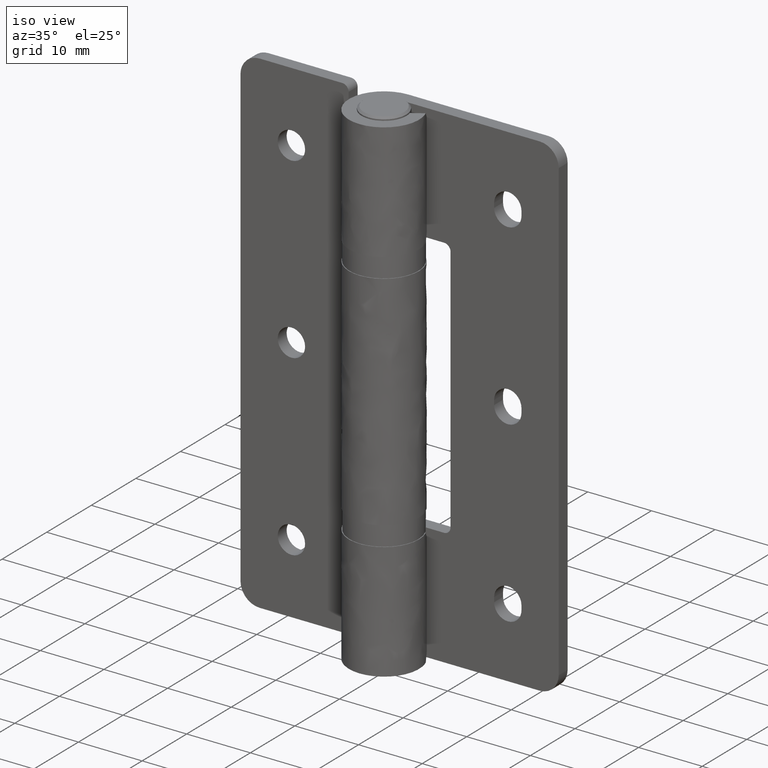
[diagram: clean part render]
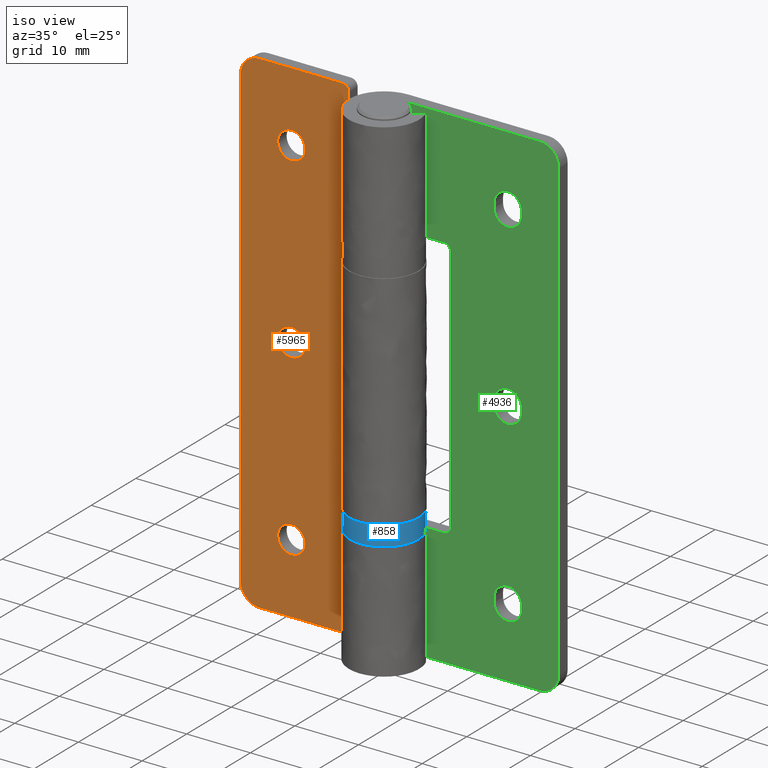
[diagram: same view with three faces highlighted in distinct colors, each labeled with its STEP entity id]
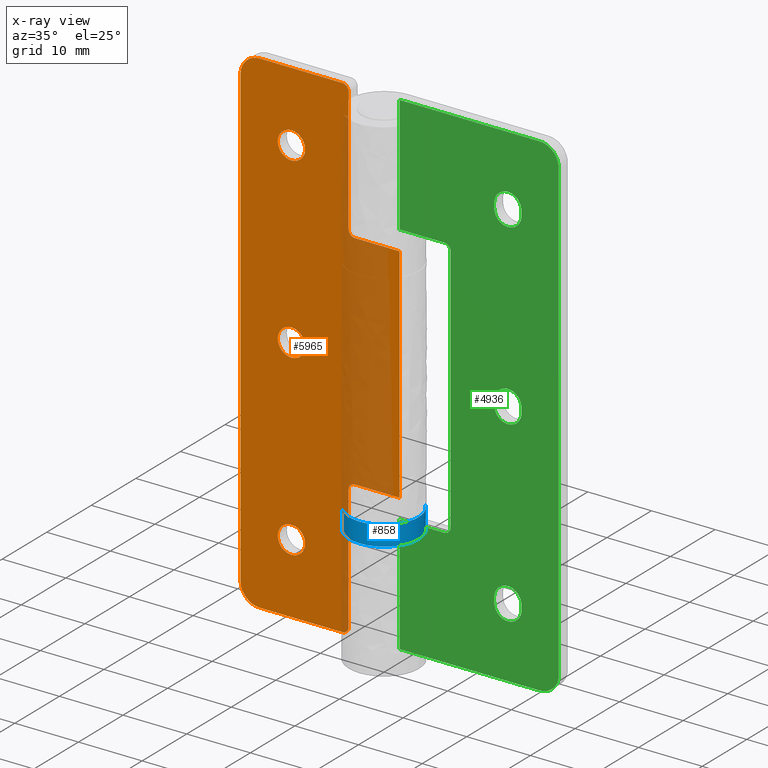
[diagram: x-ray of the same camera — body ghosted, the three highlighted faces saturated]
A machine part, iso view with three faces highlighted in distinct colors.
The next image is the same camera in x-ray (body ghosted, the three faces saturated) — at least one of them is partly hidden behind the body in this view.
Their STEP definitions:

[orange] entity #5965 — the highlighted face is a freeform B-spline surface patch.
#4957=CARTESIAN_POINT('',(-17.0,3.500000000000280,36.850000000000001));
#4958=VERTEX_POINT('',#4957);
#4959=CARTESIAN_POINT('',(-15.547481327661879,3.499999999994492,37.414853854094837));
#4960=VERTEX_POINT('',#4959);
#4961=CARTESIAN_POINT('',(-17.0,3.500000000000280,36.850000000000001));
#4962=CARTESIAN_POINT('',(-16.750784863622091,3.499999999999286,36.849813920717430));
#4963=CARTESIAN_POINT('',(-16.219342285086739,3.499999999997181,36.943530314709882));
#4964=CARTESIAN_POINT('',(-15.755514182796709,3.499999999995314,37.223788268338730));
#4965=CARTESIAN_POINT('',(-15.547481327661879,3.499999999994492,37.414853854094837));
#4966=B_SPLINE_CURVE_WITH_KNOTS('',3,(#4961,#4962,#4963,#4964,#4965),.UNSPECIFIED.,.F.,.U.,(4,1,4),(0.000000028309747,0.747583364427401,1.594830082076133),.UNSPECIFIED.);
#4967=EDGE_CURVE('',#4958,#4960,#4966,.T.);
#5012=CARTESIAN_POINT('',(-18.452518672338119,3.499999999994491,40.585146145905171));
#5013=VERTEX_POINT('',#5012);
#5019=CARTESIAN_POINT('',(-19.149999999999700,3.500000000000280,38.999998877000081));
#5020=VERTEX_POINT('',#5019);
#5021=CARTESIAN_POINT('',(-18.452518672338119,3.499999999994491,40.585146145905171));
#5022=CARTESIAN_POINT('',(-18.630609647930591,3.499999999995078,40.422187523544608));
#5023=CARTESIAN_POINT('',(-18.873011044657979,3.499999999996232,40.109778108582432));
#5024=CARTESIAN_POINT('',(-19.099346326530551,3.499999999998247,39.556966630090777));
#5025=CARTESIAN_POINT('',(-19.150072571371041,3.499999999999528,39.204241123080152));
#5026=CARTESIAN_POINT('',(-19.149999999999700,3.500000000000280,38.999998877000081));
#5027=B_SPLINE_CURVE_WITH_KNOTS('',3,(#5021,#5022,#5023,#5024,#5025,#5026),.UNSPECIFIED.,.F.,.U.,(4,1,1,4),(0.000000017056358,0.724128326418334,1.169744671054195,1.782468455133528),.UNSPECIFIED.);
#5028=EDGE_CURVE('',#5013,#5020,#5027,.T.);
#5030=CARTESIAN_POINT('',(-19.149999999999700,3.500000000000280,38.999998877000081));
#5031=CARTESIAN_POINT('',(-19.150101188763241,3.500000000000273,38.788910656635558));
#5032=CARTESIAN_POINT('',(-19.097744219350940,3.500000000000303,38.437183475204172));
#5033=CARTESIAN_POINT('',(-18.881336557648890,3.500000000000265,37.914618303467329));
#5034=CARTESIAN_POINT('',(-18.531883444500998,3.500000000000275,37.443247242324283));
#5035=CARTESIAN_POINT('',(-18.055390660098400,3.500000000000328,37.098905211314893));
#5036=CARTESIAN_POINT('',(-17.527647375223520,3.500000000000165,36.895449709180880));
#5037=CARTESIAN_POINT('',(-17.193491843255071,3.500000000000411,36.849930084764161));
#5038=CARTESIAN_POINT('',(-17.0,3.500000000000280,36.850000000000001));
#5039=B_SPLINE_CURVE_WITH_KNOTS('',3,(#5030,#5031,#5032,#5033,#5034,#5035,#5036,#5037,#5038),.UNSPECIFIED.,.F.,.U.,(4,1,1,1,1,1,4),(0.000000059267231,0.633238630304317,1.055413846520483,1.688648139767658,2.374656824311486,2.796834123014028,3.377296217363182),.UNSPECIFIED.);
#5040=EDGE_CURVE('',#5020,#4958,#5039,.T.);
#5063=CARTESIAN_POINT('',(-14.850000000000300,3.500000000000280,39.000001122999947));
#5064=VERTEX_POINT('',#5063);
#5065=CARTESIAN_POINT('',(-15.547481327661879,3.499999999994492,37.414853854094837));
#5066=CARTESIAN_POINT('',(-15.341892700432661,3.499999999995179,37.602820165097299));
#5067=CARTESIAN_POINT('',(-15.106737295369880,3.499999999996351,37.922963463069003));
#5068=CARTESIAN_POINT('',(-14.895339175971580,3.499999999998381,38.480178280560892));
#5069=CARTESIAN_POINT('',(-14.849920878185010,3.499999999999528,38.795753959126209));
#5070=CARTESIAN_POINT('',(-14.850000000000300,3.500000000000280,39.000001122999947));
#5071=B_SPLINE_CURVE_WITH_KNOTS('',3,(#5065,#5066,#5067,#5068,#5069,#5070),.UNSPECIFIED.,.F.,.U.,(4,1,1,4),(0.000000017056786,0.835532478769053,1.169744671054232,1.782468455133558),.UNSPECIFIED.);
#5072=EDGE_CURVE('',#4960,#5064,#5071,.T.);
#5074=CARTESIAN_POINT('',(-17.0,3.500000000000280,41.149999999999999));
#5075=VERTEX_POINT('',#5074);
#5076=CARTESIAN_POINT('',(-14.850000000000300,3.500000000000280,39.000001122999947));
#5077=CARTESIAN_POINT('',(-14.849687436548001,3.500000000000281,39.281494285383481));
#5078=CARTESIAN_POINT('',(-14.934121356455400,3.500000000000281,39.703396874957029));
#5079=CARTESIAN_POINT('',(-15.200837674254190,3.500000000000282,40.202172955929022));
#5080=CARTESIAN_POINT('',(-15.525932512125170,3.500000000000280,40.598469103040642));
#5081=CARTESIAN_POINT('',(-15.944586677896369,3.500000000000278,40.901102735165857));
#5082=CARTESIAN_POINT('',(-16.472352793423070,3.500000000000285,41.104552500907417));
#5083=CARTESIAN_POINT('',(-16.806511621607768,3.500000000000286,41.150065119617523));
#5084=CARTESIAN_POINT('',(-17.0,3.500000000000280,41.149999999999999));
#5085=B_SPLINE_CURVE_WITH_KNOTS('',3,(#5076,#5077,#5078,#5079,#5080,#5081,#5082,#5083,#5084),.UNSPECIFIED.,.F.,.U.,(4,1,1,1,1,1,4),(0.000000059257455,0.844324192768387,1.266503582378407,1.688648139762583,2.374656824308351,2.796834123012236,3.377296217363242),.UNSPECIFIED.);
#5086=EDGE_CURVE('',#5064,#5075,#5085,.T.);
#5088=CARTESIAN_POINT('',(-17.0,3.500000000000280,41.149999999999999));
#5089=CARTESIAN_POINT('',(-17.282453102359131,3.499999999999156,41.150290773421922));
#5090=CARTESIAN_POINT('',(-17.813779056273908,3.499999999997035,41.043629709133107));
#5091=CARTESIAN_POINT('',(-18.268902067638411,3.499999999995227,40.753642846280762));
#5092=CARTESIAN_POINT('',(-18.452518672338119,3.499999999994491,40.585146145905171));
#5093=B_SPLINE_CURVE_WITH_KNOTS('',3,(#5088,#5089,#5090,#5091,#5092),.UNSPECIFIED.,.F.,.U.,(4,1,4),(0.000000028309740,0.847246745948761,1.594830082076129),.UNSPECIFIED.);
#5094=EDGE_CURVE('',#5075,#5013,#5093,.T.);
#5153=CARTESIAN_POINT('',(-17.0,3.500000000000280,8.850000000000000));
#5154=VERTEX_POINT('',#5153);
#5155=CARTESIAN_POINT('',(-15.547481327661879,3.499999999994492,9.414853854094837));
#5156=VERTEX_POINT('',#5155);
#5157=CARTESIAN_POINT('',(-17.0,3.500000000000280,8.850000000000000));
#5158=CARTESIAN_POINT('',(-16.717546807176159,3.499999999999162,8.849687119548351));
#5159=CARTESIAN_POINT('',(-16.186213116188441,3.499999999997025,8.956378661657208));
#5160=CARTESIAN_POINT('',(-15.731107258409271,3.499999999995231,9.246366275043306));
#5161=CARTESIAN_POINT('',(-15.547481327661879,3.499999999994492,9.414853854094837));
#5162=B_SPLINE_CURVE_WITH_KNOTS('',3,(#5157,#5158,#5159,#5160,#5161),.UNSPECIFIED.,.F.,.U.,(4,1,4),(0.000000028309969,0.847246745948747,1.594830082076143),.UNSPECIFIED.);
#5163=EDGE_CURVE('',#5154,#5156,#5162,.T.);
#5208=CARTESIAN_POINT('',(-18.452518672338119,3.499999999994492,12.585146145905171));
#5209=VERTEX_POINT('',#5208);
#5215=CARTESIAN_POINT('',(-19.149999999999711,3.500000000000281,10.999998877000079));
#5216=VERTEX_POINT('',#5215);
#5217=CARTESIAN_POINT('',(-18.452518672338119,3.499999999994492,12.585146145905171));
#5218=CARTESIAN_POINT('',(-18.658100568578920,3.499999999995176,12.397179829813570));
#5219=CARTESIAN_POINT('',(-18.915680333152380,3.499999999996465,12.046545176718629));
#5220=CARTESIAN_POINT('',(-19.113002073786362,3.499999999998509,11.482714502773529));
#5221=CARTESIAN_POINT('',(-19.150038369575690,3.499999999999674,11.167105396444370));
#5222=CARTESIAN_POINT('',(-19.149999999999711,3.500000000000281,10.999998877000079));
#5223=B_SPLINE_CURVE_WITH_KNOTS('',3,(#5217,#5218,#5219,#5220,#5221,#5222),.UNSPECIFIED.,.F.,.U.,(4,1,1,4),(0.000000017056431,0.835532478768917,1.281149173840117,1.782468455133540),.UNSPECIFIED.);
#5224=EDGE_CURVE('',#5209,#5216,#5223,.T.);
#5226=CARTESIAN_POINT('',(-19.149999999999711,3.500000000000281,10.999998877000079));
#5227=CARTESIAN_POINT('',(-19.150101113542000,3.500000000000276,10.788910751429560));
#5228=CARTESIAN_POINT('',(-19.097744321428110,3.500000000000289,10.437183354541990));
#5229=CARTESIAN_POINT('',(-18.881336455206149,3.500000000000276,9.914618438697069));
#5230=CARTESIAN_POINT('',(-18.531883850229459,3.500000000000283,9.443246742958650));
#5231=CARTESIAN_POINT('',(-18.055389391644930,3.500000000000273,9.098906837843142));
#5232=CARTESIAN_POINT('',(-17.527650646409018,3.500000000000285,8.895445912307972));
#5233=CARTESIAN_POINT('',(-17.193489056433201,3.500000000000290,8.849934591403176));
#5234=CARTESIAN_POINT('',(-17.0,3.500000000000280,8.850000000000000));
#5235=B_SPLINE_CURVE_WITH_KNOTS('',3,(#5226,#5227,#5228,#5229,#5230,#5231,#5232,#5233,#5234),.UNSPECIFIED.,.F.,.U.,(4,1,1,1,1,1,4),(0.000000059263423,0.633238630300939,1.055413846517656,1.688648139765522,2.374656824310244,2.796834123013293,3.377296217363211),.UNSPECIFIED.);
#5236=EDGE_CURVE('',#5216,#5154,#5235,.T.);
#5259=CARTESIAN_POINT('',(-14.850000000000300,3.500000000000280,11.000001122999951));
#5260=VERTEX_POINT('',#5259);
#5261=CARTESIAN_POINT('',(-15.547481327661879,3.499999999994492,9.414853854094837));
#5262=CARTESIAN_POINT('',(-15.424256035091631,3.499999999994905,9.527721972640586));
#5263=CARTESIAN_POINT('',(-15.216582368603291,3.499999999995781,9.768249656113190));
#5264=CARTESIAN_POINT('',(-14.934164554715160,3.499999999997706,10.294643308150270));
#5265=CARTESIAN_POINT('',(-14.849726609252450,3.499999999999261,10.721448277535311));
#5266=CARTESIAN_POINT('',(-14.850000000000300,3.500000000000280,11.000001122999951));
#5267=B_SPLINE_CURVE_WITH_KNOTS('',3,(#5261,#5262,#5263,#5264,#5265,#5266),.UNSPECIFIED.,.F.,.U.,(4,1,1,4),(0.000000017056563,0.501319298344168,0.946935993375691,1.782468455133563),.UNSPECIFIED.);
#5268=EDGE_CURVE('',#5156,#5260,#5267,.T.);
#5270=CARTESIAN_POINT('',(-17.0,3.500000000000280,13.150000000000000));
#5271=VERTEX_POINT('',#5270);
#5272=CARTESIAN_POINT('',(-14.850000000000300,3.500000000000280,11.000001122999951));
#5273=CARTESIAN_POINT('',(-14.849690086156450,3.500000000000277,11.281491750374480));
#5274=CARTESIAN_POINT('',(-14.934116247247280,3.500000000000288,11.703401883408169));
#5275=CARTESIAN_POINT('',(-15.184175430591401,3.500000000000277,12.171001580196810));
#5276=CARTESIAN_POINT('',(-15.422884827637271,3.500000000000283,12.476898230964640));
#5277=CARTESIAN_POINT('',(-15.697890817285341,3.500000000000278,12.726153386977270));
#5278=CARTESIAN_POINT('',(-16.043589912721949,3.500000000000275,12.939170912109700));
#5279=CARTESIAN_POINT('',(-16.472345474295409,3.500000000000306,13.104565672700261));
#5280=CARTESIAN_POINT('',(-16.806507709180991,3.500000000000242,13.150070213125280));
#5281=CARTESIAN_POINT('',(-17.0,3.500000000000280,13.150000000000000));
#5282=B_SPLINE_CURVE_WITH_KNOTS('',3,(#5272,#5273,#5274,#5275,#5276,#5277,#5278,#5279,#5280,#5281),.UNSPECIFIED.,.F.,.U.,(4,1,1,1,1,1,1,4),(0.000000059262346,0.844324192772395,1.266503582381783,1.583116078472730,2.005250117323648,2.374656824309997,2.796834123013206,3.377296217363191),.UNSPECIFIED.);
#5283=EDGE_CURVE('',#5260,#5271,#5282,.T.);
#5285=CARTESIAN_POINT('',(-17.0,3.500000000000280,13.150000000000000));
#5286=CARTESIAN_POINT('',(-17.249215104766989,3.499999999999283,13.150186105582341));
#5287=CARTESIAN_POINT('',(-17.780657809910430,3.499999999997181,13.056469575850540));
#5288=CARTESIAN_POINT('',(-18.244485811967920,3.499999999995314,12.776211882627040));
#5289=CARTESIAN_POINT('',(-18.452518672338119,3.499999999994492,12.585146145905171));
#5290=B_SPLINE_CURVE_WITH_KNOTS('',3,(#5285,#5286,#5287,#5288,#5289),.UNSPECIFIED.,.F.,.U.,(4,1,4),(0.000000028309471,0.747583364427230,1.594830082076143),.UNSPECIFIED.);
#5291=EDGE_CURVE('',#5271,#5209,#5290,.T.);
#5349=CARTESIAN_POINT('',(-17.0,3.500000000000280,64.850000000000009));
#5350=VERTEX_POINT('',#5349);
#5351=CARTESIAN_POINT('',(-15.547481327661879,3.499999999994491,65.414853854094844));
#5352=VERTEX_POINT('',#5351);
#5353=CARTESIAN_POINT('',(-17.0,3.500000000000280,64.850000000000009));
#5354=CARTESIAN_POINT('',(-16.717546824026389,3.499999999999158,64.849709142255335));
#5355=CARTESIAN_POINT('',(-16.186220816625742,3.499999999997032,64.956370486902244));
#5356=CARTESIAN_POINT('',(-15.731097923967010,3.499999999995222,65.246357054004719));
#5357=CARTESIAN_POINT('',(-15.547481327661879,3.499999999994491,65.414853854094844));
#5358=B_SPLINE_CURVE_WITH_KNOTS('',3,(#5353,#5354,#5355,#5356,#5357),.UNSPECIFIED.,.F.,.U.,(4,1,4),(0.000000028307833,0.847246745948114,1.594830082076136),.UNSPECIFIED.);
#5359=EDGE_CURVE('',#5350,#5352,#5358,.T.);
#5403=CARTESIAN_POINT('',(-18.452518672338119,3.499999999994492,68.585146145905156));
#5404=VERTEX_POINT('',#5403);
#5410=CARTESIAN_POINT('',(-19.149999999999700,3.500000000000280,66.999998877000081));
#5411=VERTEX_POINT('',#5410);
#5412=CARTESIAN_POINT('',(-18.452518672338119,3.499999999994492,68.585146145905156));
#5413=CARTESIAN_POINT('',(-18.630608223863220,3.499999999995081,68.422186058349268));
#5414=CARTESIAN_POINT('',(-18.873018979651238,3.499999999996223,68.109781201989790));
#5415=CARTESIAN_POINT('',(-19.099331832940429,3.499999999998260,67.556962214854195));
#5416=CARTESIAN_POINT('',(-19.150087217038681,3.499999999999519,67.204244333170081));
#5417=CARTESIAN_POINT('',(-19.149999999999700,3.500000000000280,66.999998877000081));
#5418=B_SPLINE_CURVE_WITH_KNOTS('',3,(#5412,#5413,#5414,#5415,#5416,#5417),.UNSPECIFIED.,.F.,.U.,(4,1,1,4),(0.000000017055400,0.724128326417889,1.169744671054009,1.782468455133525),.UNSPECIFIED.);
#5419=EDGE_CURVE('',#5404,#5411,#5418,.T.);
#5421=CARTESIAN_POINT('',(-19.149999999999700,3.500000000000280,66.999998877000081));
#5422=CARTESIAN_POINT('',(-19.150094145582798,3.500000000000283,66.788915029412109));
#5423=CARTESIAN_POINT('',(-19.087324903823440,3.500000000000284,66.366806787329082));
#5424=CARTESIAN_POINT('',(-18.844130737863019,3.500000000000281,65.852417721420110));
#5425=CARTESIAN_POINT('',(-18.552480762697780,3.500000000000278,65.497264295873705));
#5426=CARTESIAN_POINT('',(-18.218640152832730,3.500000000000284,65.209220793998114));
#5427=CARTESIAN_POINT('',(-17.721060931359691,3.500000000000275,64.935267388478877));
#5428=CARTESIAN_POINT('',(-17.263868816476741,3.500000000000286,64.849779201338819));
#5429=CARTESIAN_POINT('',(-17.0,3.500000000000280,64.850000000000009));
#5430=B_SPLINE_CURVE_WITH_KNOTS('',3,(#5421,#5422,#5423,#5424,#5425,#5426,#5427,#5428,#5429),.UNSPECIFIED.,.F.,.U.,(4,1,1,1,1,1,4),(0.000000059260022,0.633238630298741,1.266503582381106,1.688648139764947,2.005250117323304,2.585742914025569,3.377296217363155),.UNSPECIFIED.);
#5431=EDGE_CURVE('',#5411,#5350,#5430,.T.);
#5454=CARTESIAN_POINT('',(-14.850000000000300,3.500000000000280,67.000001122999976));
#5455=VERTEX_POINT('',#5454);
#5456=CARTESIAN_POINT('',(-15.547481327661879,3.499999999994491,65.414853854094844));
#5457=CARTESIAN_POINT('',(-15.396831067023591,3.499999999994993,65.552773358447155));
#5458=CARTESIAN_POINT('',(-15.194864790569870,3.499999999995903,65.799475832463443));
#5459=CARTESIAN_POINT('',(-14.926853121877540,3.499999999997828,66.331773664517428));
#5460=CARTESIAN_POINT('',(-14.849690835261070,3.499999999999275,66.721437197793264));
#5461=CARTESIAN_POINT('',(-14.850000000000300,3.500000000000280,67.000001122999976));
#5462=B_SPLINE_CURVE_WITH_KNOTS('',3,(#5456,#5457,#5458,#5459,#5460,#5461),.UNSPECIFIED.,.F.,.U.,(4,1,1,4),(0.000000017056145,0.612723801116897,0.946935993375560,1.782468455133578),.UNSPECIFIED.);
#5463=EDGE_CURVE('',#5352,#5455,#5462,.T.);
#5465=CARTESIAN_POINT('',(-17.0,3.500000000000280,69.150000000000006));
#5466=VERTEX_POINT('',#5465);
#5467=CARTESIAN_POINT('',(-14.850000000000300,3.500000000000280,67.000001122999976));
#5468=CARTESIAN_POINT('',(-14.849898841997019,3.500000000000288,67.211089286753307));
#5469=CARTESIAN_POINT('',(-14.902251593238940,3.500000000000272,67.562819206137419));
#5470=CARTESIAN_POINT('',(-15.091656730420540,3.500000000000289,68.020034379811563));
#5471=CARTESIAN_POINT('',(-15.366532490977130,3.500000000000272,68.431588815461154));
#5472=CARTESIAN_POINT('',(-15.748610950630280,3.500000000000282,68.777834785830336));
#5473=CARTESIAN_POINT('',(-16.314159384808569,3.500000000000299,69.071246477646710));
#5474=CARTESIAN_POINT('',(-16.736111175468540,3.500000000000273,69.150243658436580));
#5475=CARTESIAN_POINT('',(-17.0,3.500000000000280,69.150000000000006));
#5476=B_SPLINE_CURVE_WITH_KNOTS('',3,(#5467,#5468,#5469,#5470,#5471,#5472,#5473,#5474,#5475),.UNSPECIFIED.,.F.,.U.,(4,1,1,1,1,1,4),(0.000000059261535,0.633238630299433,1.055413846516301,1.477581895061497,2.110791937422534,2.585742914025473,3.377296217363131),.UNSPECIFIED.);
#5477=EDGE_CURVE('',#5455,#5466,#5476,.T.);
#5479=CARTESIAN_POINT('',(-17.0,3.500000000000280,69.150000000000006));
#5480=CARTESIAN_POINT('',(-17.149511936152241,3.499999999999687,69.150017957301301));
#5481=CARTESIAN_POINT('',(-17.465140561834531,3.499999999998424,69.116954644858481));
#5482=CARTESIAN_POINT('',(-17.972402813489381,3.499999999996407,68.946360484591892));
#5483=CARTESIAN_POINT('',(-18.293344075141821,3.499999999995126,68.731114797207582));
#5484=CARTESIAN_POINT('',(-18.452518672338119,3.499999999994492,68.585146145905156));
#5485=B_SPLINE_CURVE_WITH_KNOTS('',3,(#5479,#5480,#5481,#5482,#5483,#5484),.UNSPECIFIED.,.F.,.U.,(4,1,1,4),(0.000000028309797,0.448546688681547,0.946919981252394,1.594830082076145),.UNSPECIFIED.);
#5486=EDGE_CURVE('',#5466,#5404,#5485,.T.);
#5542=CARTESIAN_POINT('',(-9.0,3.500000000000230,0.0));
#5543=VERTEX_POINT('',#5542);
#5544=CARTESIAN_POINT('',(-8.0,3.500000000000230,0.999999999999890));
#5545=VERTEX_POINT('',#5544);
#5546=CARTESIAN_POINT('',(-9.0,3.500000000000230,0.0));
#5547=CARTESIAN_POINT('',(-8.860892216680902,3.500000000000259,-0.000171982870197));
#5548=CARTESIAN_POINT('',(-8.591053289355219,3.500000000000230,0.057238376779166));
#5549=CARTESIAN_POINT('',(-8.311465148677801,3.500000000000282,0.254055191650964));
#5550=CARTESIAN_POINT('',(-8.144660598709816,3.500000000000259,0.468040712281034));
#5551=CARTESIAN_POINT('',(-8.032690144192223,3.500000000000255,0.697339384090554));
#5552=CARTESIAN_POINT('',(-7.999926471365980,3.500000000000240,0.885453400743889));
#5553=CARTESIAN_POINT('',(-8.0,3.500000000000230,0.999999999999890));
#5554=B_SPLINE_CURVE_WITH_KNOTS('',3,(#5546,#5547,#5548,#5549,#5550,#5551,#5552,#5553),.UNSPECIFIED.,.F.,.U.,(4,1,1,1,1,4),(0.000000190634880,0.417255613776076,0.809934469542396,1.006313740652122,1.227218004027985,1.570835744366222),.UNSPECIFIED.);
#5555=EDGE_CURVE('',#5543,#5545,#5554,.T.);
#5599=CARTESIAN_POINT('',(-8.0,3.500000000000230,77.0));
#5600=VERTEX_POINT('',#5599);
#5601=CARTESIAN_POINT('',(-9.0,3.500000000000230,78.0));
#5602=VERTEX_POINT('',#5601);
#5603=CARTESIAN_POINT('',(-8.0,3.500000000000230,77.0));
#5604=CARTESIAN_POINT('',(-7.999975212411021,3.500000000000235,77.089992979921945));
#5605=CARTESIAN_POINT('',(-8.025556563614131,3.500000000000221,77.278157346137633));
#5606=CARTESIAN_POINT('',(-8.149504958968951,3.500000000000235,77.557927659573465));
#5607=CARTESIAN_POINT('',(-8.366954548816940,3.500000000000231,77.797868226627273));
#5608=CARTESIAN_POINT('',(-8.664606588971557,3.500000000000228,77.961639737834503));
#5609=CARTESIAN_POINT('',(-8.885455621676551,3.500000000000230,78.000066619413289));
#5610=CARTESIAN_POINT('',(-9.0,3.500000000000230,78.0));
#5611=B_SPLINE_CURVE_WITH_KNOTS('',3,(#5603,#5604,#5605,#5606,#5607,#5608,#5609,#5610),.UNSPECIFIED.,.F.,.U.,(4,1,1,1,1,4),(0.000000190633767,0.269984710472300,0.564526978997525,0.908118885506257,1.227218004028145,1.570835744366334),.UNSPECIFIED.);
#5612=EDGE_CURVE('',#5600,#5602,#5611,.T.);
#5674=CARTESIAN_POINT('',(-25.0,3.500000000000230,75.0));
#5675=VERTEX_POINT('',#5674);
#5681=CARTESIAN_POINT('',(-22.000000000000249,3.500000000000230,78.0));
#5682=VERTEX_POINT('',#5681);
#5683=CARTESIAN_POINT('',(-22.000000000000249,3.500000000000230,78.0));
#5684=CARTESIAN_POINT('',(-22.368218185274280,3.500000000000244,78.000354510746845));
#5685=CARTESIAN_POINT('',(-22.907914227344520,3.500000000000213,77.899291184137013));
#5686=CARTESIAN_POINT('',(-23.594209139491710,3.500000000000248,77.564269519292424));
#5687=CARTESIAN_POINT('',(-24.016720953317670,3.500000000000220,77.242808795404912));
#5688=CARTESIAN_POINT('',(-24.399244529903498,3.500000000000243,76.825910354484307));
#5689=CARTESIAN_POINT('',(-24.725890922825450,3.500000000000205,76.317134480435655));
#5690=CARTESIAN_POINT('',(-24.951215377535028,3.500000000000220,75.674954714392911));
#5691=CARTESIAN_POINT('',(-25.000019708125748,3.500000000000246,75.208614228200688));
#5692=CARTESIAN_POINT('',(-25.0,3.500000000000230,75.0));
#5693=B_SPLINE_CURVE_WITH_KNOTS('',3,(#5683,#5684,#5685,#5686,#5687,#5688,#5689,#5690,#5691,#5692),.UNSPECIFIED.,.F.,.U.,(4,1,1,1,1,1,1,4),(0.000000112331904,1.104471261142595,1.619896332889968,2.282592096883743,2.687550943509634,3.313414006840983,4.086567110700486,4.712418548635602),.UNSPECIFIED.);
#5694=EDGE_CURVE('',#5682,#5675,#5693,.T.);
#5734=CARTESIAN_POINT('',(-22.000000000000249,3.500000000000230,0.0));
#5735=VERTEX_POINT('',#5734);
#5741=CARTESIAN_POINT('',(-25.0,3.500000000000230,2.999999999999890));
#5742=VERTEX_POINT('',#5741);
#5743=CARTESIAN_POINT('',(-25.0,3.500000000000230,2.999999999999890));
#5744=CARTESIAN_POINT('',(-25.000026838536460,3.500000000000235,2.791382510498576));
#5745=CARTESIAN_POINT('',(-24.953755164942191,3.500000000000218,2.349599166207914));
#5746=CARTESIAN_POINT('',(-24.744550778347900,3.500000000000241,1.729077316832350));
#5747=CARTESIAN_POINT('',(-24.392094374762539,3.500000000000226,1.149147131038180));
#5748=CARTESIAN_POINT('',(-23.929083697664659,3.500000000000216,0.668760776557746));
#5749=CARTESIAN_POINT('',(-23.328820727379071,3.500000000000247,0.278202911552338));
#5750=CARTESIAN_POINT('',(-22.674951208901259,3.500000000000215,0.048795349126709));
#5751=CARTESIAN_POINT('',(-22.208615030005429,3.500000000000245,-0.000022162102708));
#5752=CARTESIAN_POINT('',(-22.000000000000249,3.500000000000230,0.0));
#5753=B_SPLINE_CURVE_WITH_KNOTS('',3,(#5743,#5744,#5745,#5746,#5747,#5748,#5749,#5750,#5751,#5752),.UNSPECIFIED.,.F.,.U.,(4,1,1,1,1,1,1,4),(0.000000112341919,0.625853452172238,1.325372295735583,1.951245934178357,2.650708101122027,3.313414006843152,4.086567110700770,4.712418548635460),.UNSPECIFIED.);
#5754=EDGE_CURVE('',#5742,#5735,#5753,.T.);
#5769=CARTESIAN_POINT('',(-8.0,3.500000000000230,20.500000000000298));
#5770=VERTEX_POINT('',#5769);
#5771=CARTESIAN_POINT('',(-8.0,3.500000000000230,0.999999999999890));
#5772=CARTESIAN_POINT('',(-8.0,3.500000000000230,20.500000000000298));
#5773=QUASI_UNIFORM_CURVE('',1,(#5771,#5772),.UNSPECIFIED.,.F.,.U.);
#5774=EDGE_CURVE('',#5545,#5770,#5773,.T.);
#5805=CARTESIAN_POINT('',(-8.0,3.500000000000230,57.500000000000000));
#5806=VERTEX_POINT('',#5805);
#5807=CARTESIAN_POINT('',(-8.0,3.500000000000230,57.500000000000000));
#5808=CARTESIAN_POINT('',(-8.0,3.500000000000230,77.0));
#5809=QUASI_UNIFORM_CURVE('',1,(#5807,#5808),.UNSPECIFIED.,.F.,.U.);
#5810=EDGE_CURVE('',#5806,#5600,#5809,.T.);
#5831=CARTESIAN_POINT('',(-22.000000000000249,3.500000000000230,0.0));
#5832=CARTESIAN_POINT('',(-9.0,3.500000000000230,0.0));
#5833=QUASI_UNIFORM_CURVE('',1,(#5831,#5832),.UNSPECIFIED.,.F.,.U.);
#5834=EDGE_CURVE('',#5735,#5543,#5833,.T.);
#5845=CARTESIAN_POINT('',(-22.000000000000249,3.500000000000230,78.0));
#5846=CARTESIAN_POINT('',(-9.0,3.500000000000230,78.0));
#5847=QUASI_UNIFORM_CURVE('',1,(#5845,#5846),.UNSPECIFIED.,.F.,.U.);
#5848=EDGE_CURVE('',#5682,#5602,#5847,.T.);
#5871=CARTESIAN_POINT('',(-25.0,3.500000000000230,75.0));
#5872=CARTESIAN_POINT('',(-25.0,3.500000000000230,2.999999999999890));
#5873=QUASI_UNIFORM_CURVE('',1,(#5871,#5872),.UNSPECIFIED.,.F.,.U.);
#5874=EDGE_CURVE('',#5675,#5742,#5873,.T.);
#5880=CARTESIAN_POINT('',(-26.248749951545140,3.500000000000230,-3.896099848820864));
#5881=CARTESIAN_POINT('',(-26.248749951545140,3.500000000000230,81.896101940943907));
#5882=CARTESIAN_POINT('',(1.248750622097165,3.500000000000230,-3.896099848820863));
#5883=CARTESIAN_POINT('',(1.248750622097165,3.500000000000230,81.896101940943893));
#5884=B_SPLINE_SURFACE_WITH_KNOTS('',1,1,((#5880,#5882),(#5881,#5883)),.UNSPECIFIED.,.F.,.F.,.U.,(2,2),(2,2),(0.0,85.792201789764775),(0.0,27.497500573642299),.UNSPECIFIED.);
#5885=ORIENTED_EDGE('',*,*,#5810,.T.);
#5886=ORIENTED_EDGE('',*,*,#5612,.T.);
#5887=ORIENTED_EDGE('',*,*,#5848,.F.);
#5888=ORIENTED_EDGE('',*,*,#5694,.T.);
#5889=ORIENTED_EDGE('',*,*,#5874,.T.);
#5890=ORIENTED_EDGE('',*,*,#5754,.T.);
#5891=ORIENTED_EDGE('',*,*,#5834,.T.);
#5892=ORIENTED_EDGE('',*,*,#5555,.T.);
#5893=ORIENTED_EDGE('',*,*,#5774,.T.);
#5894=CARTESIAN_POINT('',(-7.0,3.500000000000230,21.500000000000298));
#5895=VERTEX_POINT('',#5894);
#5896=CARTESIAN_POINT('',(-8.0,3.500000000000230,20.500000000000298));
#5897=CARTESIAN_POINT('',(-8.000180551573072,3.500000000000244,20.639108638442401));
#5898=CARTESIAN_POINT('',(-7.949670366450113,3.500000000000256,20.876224230868679));
#5899=CARTESIAN_POINT('',(-7.785925467729173,3.500000000000272,21.134717503995638));
#5900=CARTESIAN_POINT('',(-7.601346399423922,3.500000000000262,21.310441538282440));
#5901=CARTESIAN_POINT('',(-7.351711990835024,3.500000000000265,21.455980529870441));
#5902=CARTESIAN_POINT('',(-7.130920842419227,3.500000000000235,21.500140122158761));
#5903=CARTESIAN_POINT('',(-7.0,3.500000000000230,21.500000000000298));
#5904=B_SPLINE_CURVE_WITH_KNOTS('',3,(#5896,#5897,#5898,#5899,#5900,#5901,#5902,#5903),.UNSPECIFIED.,.F.,.U.,(4,1,1,1,1,4),(0.000000190634992,0.417255613775887,0.711792073891705,0.908118885506325,1.178126902086059,1.570835744366326),.UNSPECIFIED.);
#5905=EDGE_CURVE('',#5770,#5895,#5904,.T.);
#5906=ORIENTED_EDGE('',*,*,#5905,.T.);
#5907=CARTESIAN_POINT('',(-2.273737E-013,3.499999999999945,21.500000000000298));
#5908=VERTEX_POINT('',#5907);
#5909=CARTESIAN_POINT('',(-7.0,3.500000000000230,21.500000000000298));
#5910=CARTESIAN_POINT('',(-2.273737E-013,3.499999999999945,21.500000000000298));
#5911=QUASI_UNIFORM_CURVE('',1,(#5909,#5910),.UNSPECIFIED.,.F.,.U.);
#5912=EDGE_CURVE('',#5895,#5908,#5911,.T.);
#5913=ORIENTED_EDGE('',*,*,#5912,.T.);
#5914=CARTESIAN_POINT('',(-2.273737E-013,3.499999999999945,56.500000000000000));
#5915=VERTEX_POINT('',#5914);
#5916=CARTESIAN_POINT('',(-2.273737E-013,3.499999999999945,56.500000000000000));
#5917=CARTESIAN_POINT('',(-2.273737E-013,3.499999999999945,21.500000000000298));
#5918=QUASI_UNIFORM_CURVE('',1,(#5916,#5917),.UNSPECIFIED.,.F.,.U.);
#5919=EDGE_CURVE('',#5915,#5908,#5918,.T.);
#5920=ORIENTED_EDGE('',*,*,#5919,.F.);
#5921=CARTESIAN_POINT('',(-7.0,3.500000000000230,56.500000000000000));
#5922=VERTEX_POINT('',#5921);
#5923=CARTESIAN_POINT('',(-2.273737E-013,3.499999999999945,56.500000000000000));
#5924=CARTESIAN_POINT('',(-7.0,3.500000000000230,56.500000000000000));
#5925=QUASI_UNIFORM_CURVE('',1,(#5923,#5924),.UNSPECIFIED.,.F.,.U.);
#5926=EDGE_CURVE('',#5915,#5922,#5925,.T.);
#5927=ORIENTED_EDGE('',*,*,#5926,.T.);
#5928=CARTESIAN_POINT('',(-7.0,3.500000000000230,56.500000000000000));
#5929=CARTESIAN_POINT('',(-7.139111867720062,3.500000000000251,56.499815682210958));
#5930=CARTESIAN_POINT('',(-7.376218523805679,3.500000000000269,56.550337056248829));
#5931=CARTESIAN_POINT('',(-7.634722922286430,3.500000000000291,56.714068729011863));
#5932=CARTESIAN_POINT('',(-7.799079372626761,3.500000000000276,56.886755897650829));
#5933=CARTESIAN_POINT('',(-7.950316988825716,3.500000000000267,57.131994244863520));
#5934=CARTESIAN_POINT('',(-8.000205140821553,3.500000000000268,57.352694197906693));
#5935=CARTESIAN_POINT('',(-8.0,3.500000000000230,57.500000000000000));
#5936=B_SPLINE_CURVE_WITH_KNOTS('',3,(#5928,#5929,#5930,#5931,#5932,#5933,#5934,#5935),.UNSPECIFIED.,.F.,.U.,(4,1,1,1,1,4),(0.000000190635754,0.417255613776878,0.711792073892506,0.908118885506836,1.129035800121782,1.570835744366310),.UNSPECIFIED.);
#5937=EDGE_CURVE('',#5922,#5806,#5936,.T.);
#5938=ORIENTED_EDGE('',*,*,#5937,.T.);
#5939=EDGE_LOOP('',(#5885,#5886,#5887,#5888,#5889,#5890,#5891,#5892,#5893,#5906,#5913,#5920,#5927,#5938));
#5940=FACE_OUTER_BOUND('',#5939,.T.);
#5941=ORIENTED_EDGE('',*,*,#5283,.F.);
#5942=ORIENTED_EDGE('',*,*,#5268,.F.);
#5943=ORIENTED_EDGE('',*,*,#5163,.F.);
#5944=ORIENTED_EDGE('',*,*,#5236,.F.);
#5945=ORIENTED_EDGE('',*,*,#5224,.F.);
#5946=ORIENTED_EDGE('',*,*,#5291,.F.);
#5947=EDGE_LOOP('',(#5941,#5942,#5943,#5944,#5945,#5946));
#5948=FACE_BOUND('',#5947,.T.);
#5949=ORIENTED_EDGE('',*,*,#5477,.F.);
#5950=ORIENTED_EDGE('',*,*,#5463,.F.);
#5951=ORIENTED_EDGE('',*,*,#5359,.F.);
#5952=ORIENTED_EDGE('',*,*,#5431,.F.);
#5953=ORIENTED_EDGE('',*,*,#5419,.F.);
#5954=ORIENTED_EDGE('',*,*,#5486,.F.);
#5955=EDGE_LOOP('',(#5949,#5950,#5951,#5952,#5953,#5954));
#5956=FACE_BOUND('',#5955,.T.);
#5957=ORIENTED_EDGE('',*,*,#5086,.F.);
#5958=ORIENTED_EDGE('',*,*,#5072,.F.);
#5959=ORIENTED_EDGE('',*,*,#4967,.F.);
#5960=ORIENTED_EDGE('',*,*,#5040,.F.);
#5961=ORIENTED_EDGE('',*,*,#5028,.F.);
#5962=ORIENTED_EDGE('',*,*,#5094,.F.);
#5963=EDGE_LOOP('',(#5957,#5958,#5959,#5960,#5961,#5962));
#5964=FACE_BOUND('',#5963,.T.);
#5965=ADVANCED_FACE('',(#5940,#5948,#5956,#5964),#5884,.F.);

[blue] entity #858 — the highlighted face is a freeform B-spline surface patch.
#753=CARTESIAN_POINT('',(4.023806535271238,3.601247140465157,21.654845307685850));
#754=CARTESIAN_POINT('',(7.625053675736393,-0.422559394806081,21.654845307685861));
#755=CARTESIAN_POINT('',(3.601247140465157,-4.023806535271238,21.654845307685850));
#756=CARTESIAN_POINT('',(-0.422559394806081,-7.625053675736393,21.654845307685861));
#757=CARTESIAN_POINT('',(-4.023806535271238,-3.601247140465157,21.654845307685850));
#758=CARTESIAN_POINT('',(4.023806535271238,3.601247140465157,18.245154585994349));
#759=CARTESIAN_POINT('',(7.625053675736393,-0.422559394806080,18.245154585994349));
#760=CARTESIAN_POINT('',(3.601247140465157,-4.023806535271238,18.245154585994349));
#761=CARTESIAN_POINT('',(-0.422559394806080,-7.625053675736393,18.245154585994349));
#762=CARTESIAN_POINT('',(-4.023806535271238,-3.601247140465157,18.245154585994349));
#770=(BOUNDED_SURFACE()B_SPLINE_SURFACE(2,1,((#753,#758),(#754,#759),(#755,#760),(#756,#761),(#757,#762)),.UNSPECIFIED.,.F.,.F.,.U.)B_SPLINE_SURFACE_WITH_KNOTS((3,2,3),(2,2),(0.0,8.947012947258852,17.894025894517700),(0.0,3.409690721691506),.UNSPECIFIED.)GEOMETRIC_REPRESENTATION_ITEM()RATIONAL_B_SPLINE_SURFACE(((1.0,1.0),(0.707106781186547,0.707106781186547),(1.0,1.0),(0.707106781186547,0.707106781186547),(1.0,1.0)))REPRESENTATION_ITEM('')SURFACE());
#771=CARTESIAN_POINT('',(4.872458096471080,-2.327907235723416,21.500000000000000));
#772=VERTEX_POINT('',#771);
#773=CARTESIAN_POINT('',(4.023806595832515,3.601247072797803,21.499999999999201));
#774=VERTEX_POINT('',#773);
#775=CARTESIAN_POINT('',(4.872458096471080,-2.327907235723416,21.500000000000000));
#776=CARTESIAN_POINT('',(5.122271600727981,-1.805858980444501,21.500000000000071));
#777=CARTESIAN_POINT('',(5.361844398754479,-0.986047072378810,21.499999999999488));
#778=CARTESIAN_POINT('',(5.416370788617028,0.090192792118024,21.499999999999869));
#779=CARTESIAN_POINT('',(5.342944978668331,0.931968209236747,21.499999999999641));
#780=CARTESIAN_POINT('',(5.147393106759451,1.704925551293509,21.499999999999169));
#781=CARTESIAN_POINT('',(4.737233745089193,2.664461671663029,21.499999999999439));
#782=CARTESIAN_POINT('',(4.343707163202692,3.244050988582678,21.499999999999179));
#783=CARTESIAN_POINT('',(4.023806595832515,3.601247072797803,21.499999999999201));
#784=B_SPLINE_CURVE_WITH_KNOTS('',3,(#775,#776,#777,#778,#779,#780,#781,#782,#783),.UNSPECIFIED.,.F.,.U.,(4,1,1,1,1,1,4),(0.000000048339305,1.736064582890433,2.529700810659562,3.224090949479477,4.265753009237621,4.910580025773059,6.349030934104713),.UNSPECIFIED.);
#785=EDGE_CURVE('',#772,#774,#784,.T.);
#786=ORIENTED_EDGE('',*,*,#785,.F.);
#787=CARTESIAN_POINT('',(-4.023806515845008,-3.601247162170802,21.499999999998540));
#788=VERTEX_POINT('',#787);
#789=CARTESIAN_POINT('',(-4.023806515845008,-3.601247162170802,21.499999999998540));
#790=CARTESIAN_POINT('',(-3.765751409580953,-3.889688363917022,21.499999999998479));
#791=CARTESIAN_POINT('',(-3.228540134485564,-4.373431758613863,21.499999999998501));
#792=CARTESIAN_POINT('',(-2.224645328092790,-4.966598136946214,21.499999999998341));
#793=CARTESIAN_POINT('',(-1.219461035789616,-5.298144274306075,21.499999999998519));
#794=CARTESIAN_POINT('',(-0.283377222001876,-5.409857034064211,21.499999999998501));
#795=CARTESIAN_POINT('',(0.547360770056261,-5.393852714808123,21.499999999998629));
#796=CARTESIAN_POINT('',(1.367787970539967,-5.250578251727534,21.499999999998849));
#797=CARTESIAN_POINT('',(2.386630249876188,-4.888207209833943,21.499999999999009));
#798=CARTESIAN_POINT('',(3.242707706942766,-4.364291746686691,21.499999999999311));
#799=CARTESIAN_POINT('',(4.176485076827138,-3.496481681342766,21.499999999999599));
#800=CARTESIAN_POINT('',(4.634327245945103,-2.826929831944745,21.499999999999851));
#801=CARTESIAN_POINT('',(4.872458096471080,-2.327907235723416,21.500000000000000));
#802=B_SPLINE_CURVE_WITH_KNOTS('',3,(#789,#790,#791,#792,#793,#794,#795,#796,#797,#798,#799,#800,#801),.UNSPECIFIED.,.F.,.U.,(4,1,1,1,1,1,1,1,1,1,4),(0.000000046833943,1.161076062834255,2.156307395565680,3.483289766380532,4.312653932233048,4.976128014915592,5.971295248461972,6.800666675359946,8.210580629599676,8.957010492393849,10.615695916911699),.UNSPECIFIED.);
#803=EDGE_CURVE('',#788,#772,#802,.T.);
#804=ORIENTED_EDGE('',*,*,#803,.F.);
#805=CARTESIAN_POINT('',(-4.023806313460350,-3.601246850170503,18.399999999999999));
#806=VERTEX_POINT('',#805);
#807=CARTESIAN_POINT('',(-4.023806515845008,-3.601247162170802,21.499999999998540));
#808=CARTESIAN_POINT('',(-4.023806313460350,-3.601246850170503,18.399999999999999));
#809=QUASI_UNIFORM_CURVE('',1,(#807,#808),.UNSPECIFIED.,.F.,.U.);
#810=EDGE_CURVE('',#788,#806,#809,.T.);
#811=ORIENTED_EDGE('',*,*,#810,.T.);
#812=CARTESIAN_POINT('',(0.000001444360469,-5.399999999999808,18.399999999999999));
#813=VERTEX_POINT('',#812);
#814=CARTESIAN_POINT('',(-4.023806313460350,-3.601246850170503,18.399999999999999));
#815=CARTESIAN_POINT('',(-3.803040746465198,-3.847933132028352,18.399999999999999));
#816=CARTESIAN_POINT('',(-3.229058689905544,-4.381449649798486,18.399999999999991));
#817=CARTESIAN_POINT('',(-2.202238448144753,-4.985966263738704,18.400000000000020));
#818=CARTESIAN_POINT('',(-1.064087061262590,-5.332416031770512,18.400000000000009));
#819=CARTESIAN_POINT('',(-0.331046023157617,-5.400021801686171,18.399999999999970));
#820=CARTESIAN_POINT('',(0.000001444360469,-5.399999999999808,18.399999999999999));
#821=B_SPLINE_CURVE_WITH_KNOTS('',3,(#814,#815,#816,#817,#818,#819,#820),.UNSPECIFIED.,.F.,.U.,(4,1,1,1,4),(0.000000026167903,0.993153103771097,2.340992523716705,3.546978303295122,4.540131380898908),.UNSPECIFIED.);
#822=EDGE_CURVE('',#806,#813,#821,.T.);
#823=ORIENTED_EDGE('',*,*,#822,.T.);
#824=CARTESIAN_POINT('',(5.400000000000000,0.0,18.399999999999999));
#825=VERTEX_POINT('',#824);
#826=CARTESIAN_POINT('',(0.000001444360469,-5.399999999999808,18.399999999999999));
#827=CARTESIAN_POINT('',(0.419706122618002,-5.400098924103018,18.400000000000041));
#828=CARTESIAN_POINT('',(1.126518083721381,-5.317149966011794,18.399999999999871));
#829=CARTESIAN_POINT('',(2.075277299107379,-5.010161668913562,18.400000000000130));
#830=CARTESIAN_POINT('',(2.844823119679039,-4.616841972306666,18.399999999999849));
#831=CARTESIAN_POINT('',(3.685273714682861,-4.001662967338937,18.400000000000151));
#832=CARTESIAN_POINT('',(4.383430109097929,-3.221694675874135,18.399999999999789));
#833=CARTESIAN_POINT('',(4.968616059365287,-2.203352129081748,18.400000000000372));
#834=CARTESIAN_POINT('',(5.316742700042029,-1.170722681344147,18.399999999999991));
#835=CARTESIAN_POINT('',(5.400053326945421,-0.375514921884335,18.399999999999942));
#836=CARTESIAN_POINT('',(5.400000000000000,0.0,18.399999999999999));
#837=B_SPLINE_CURVE_WITH_KNOTS('',3,(#826,#827,#828,#829,#830,#831,#832,#833,#834,#835,#836),.UNSPECIFIED.,.F.,.U.,(4,1,1,1,1,1,1,1,4),(0.000000087729923,1.259094202787231,2.120588533906170,2.982083653401589,3.843595575939929,5.235192889555735,6.096686198527927,7.355807377029246,8.482352573459254),.UNSPECIFIED.);
#838=EDGE_CURVE('',#813,#825,#837,.T.);
#839=ORIENTED_EDGE('',*,*,#838,.T.);
#840=CARTESIAN_POINT('',(4.023806313460350,3.601246850170502,18.399999999999999));
#841=VERTEX_POINT('',#840);
#842=CARTESIAN_POINT('',(5.400000000000000,0.0,18.399999999999999));
#843=CARTESIAN_POINT('',(5.400023043380781,0.349046711902847,18.399999999999991));
#844=CARTESIAN_POINT('',(5.324144729659379,1.129278354236551,18.400000000000009));
#845=CARTESIAN_POINT('',(4.915854297378536,2.388240597261845,18.399999999999991));
#846=CARTESIAN_POINT('',(4.379975671967147,3.203576720423125,18.399999999999949));
#847=CARTESIAN_POINT('',(4.023806313460350,3.601246850170502,18.399999999999999));
#848=B_SPLINE_CURVE_WITH_KNOTS('',3,(#842,#843,#844,#845,#846,#847),.UNSPECIFIED.,.F.,.U.,(4,1,1,4),(0.000000020298157,1.047154011786362,2.340690636179934,3.942223962292515),.UNSPECIFIED.);
#849=EDGE_CURVE('',#825,#841,#848,.T.);
#850=ORIENTED_EDGE('',*,*,#849,.T.);
#851=CARTESIAN_POINT('',(4.023806595832515,3.601247072797803,21.499999999999201));
#852=CARTESIAN_POINT('',(4.023806313460350,3.601246850170502,18.399999999999999));
#853=QUASI_UNIFORM_CURVE('',1,(#851,#852),.UNSPECIFIED.,.F.,.U.);
#854=EDGE_CURVE('',#774,#841,#853,.T.);
#855=ORIENTED_EDGE('',*,*,#854,.F.);
#856=EDGE_LOOP('',(#786,#804,#811,#823,#839,#850,#855));
#857=FACE_OUTER_BOUND('',#856,.T.);
#858=ADVANCED_FACE('',(#857),#770,.T.);

[green] entity #4936 — the highlighted face is a freeform B-spline surface patch.
#3665=CARTESIAN_POINT('',(7.0,3.500000000000000,59.600000000000001));
#3666=VERTEX_POINT('',#3665);
#3667=CARTESIAN_POINT('',(8.0,3.500000000000000,58.600000000000001));
#3668=VERTEX_POINT('',#3667);
#3669=CARTESIAN_POINT('',(7.0,3.500000000000000,59.600000000000001));
#3670=CARTESIAN_POINT('',(7.106364469482779,3.499999999999987,59.600060954136822));
#3671=CARTESIAN_POINT('',(7.278124978958397,3.499999999999973,59.572310202987893));
#3672=CARTESIAN_POINT('',(7.541215091426963,3.499999999999950,59.455759362122102));
#3673=CARTESIAN_POINT('',(7.752978999401319,3.499999999999957,59.281948348996202));
#3674=CARTESIAN_POINT('',(7.946583031756938,3.499999999999944,58.984334999256191));
#3675=CARTESIAN_POINT('',(8.000235915242069,3.500000000000024,58.747312275696267));
#3676=CARTESIAN_POINT('',(8.0,3.500000000000000,58.600000000000001));
#3677=B_SPLINE_CURVE_WITH_KNOTS('',3,(#3669,#3670,#3671,#3672,#3673,#3674,#3675,#3676),.UNSPECIFIED.,.F.,.U.,(4,1,1,1,1,4),(0.000000190629543,0.319074892369057,0.515442085036011,0.859050125888629,1.129035800120636,1.570835744366337),.UNSPECIFIED.);
#3678=EDGE_CURVE('',#3666,#3668,#3677,.T.);
#3708=CARTESIAN_POINT('',(8.0,3.500000000000000,19.399999999999999));
#3709=VERTEX_POINT('',#3708);
#3710=CARTESIAN_POINT('',(7.0,3.500000000000000,18.399999999999999));
#3711=VERTEX_POINT('',#3710);
#3712=CARTESIAN_POINT('',(8.0,3.500000000000000,19.399999999999999));
#3713=CARTESIAN_POINT('',(8.000366039187487,3.499999999999977,19.236286945673360));
#3714=CARTESIAN_POINT('',(7.940429154096275,3.499999999999987,18.999384340755590));
#3715=CARTESIAN_POINT('',(7.768035842332764,3.499999999999956,18.748289705702319));
#3716=CARTESIAN_POINT('',(7.613249784144651,3.499999999999969,18.600911234675060));
#3717=CARTESIAN_POINT('',(7.367999068931090,3.499999999999969,18.449709752625999));
#3718=CARTESIAN_POINT('',(7.147311531438356,3.499999999999989,18.399767676304020));
#3719=CARTESIAN_POINT('',(7.0,3.500000000000000,18.399999999999999));
#3720=B_SPLINE_CURVE_WITH_KNOTS('',3,(#3712,#3713,#3714,#3715,#3716,#3717,#3718,#3719),.UNSPECIFIED.,.F.,.U.,(4,1,1,1,1,4),(0.000000190634410,0.490891604424962,0.711792073891689,0.908118885506335,1.129035800121422,1.570835744366331),.UNSPECIFIED.);
#3721=EDGE_CURVE('',#3709,#3711,#3720,.T.);
#3752=CARTESIAN_POINT('',(22.0,3.500000000000000,78.0));
#3753=VERTEX_POINT('',#3752);
#3759=CARTESIAN_POINT('',(25.0,3.500000000000000,75.0));
#3760=VERTEX_POINT('',#3759);
#3761=CARTESIAN_POINT('',(25.0,3.500000000000000,75.0));
#3762=CARTESIAN_POINT('',(25.000344755374769,3.499999999999981,75.368219390170367));
#3763=CARTESIAN_POINT('',(24.908494838415759,3.500000000000028,75.858850403837238));
#3764=CARTESIAN_POINT('',(24.611453566557710,3.499999999999980,76.507189979521698));
#3765=CARTESIAN_POINT('',(24.283210476318640,3.500000000000024,76.985718697110883));
#3766=CARTESIAN_POINT('',(23.782488905386089,3.499999999999997,77.445153852745349));
#3767=CARTESIAN_POINT('',(23.213114855513620,3.500000000000006,77.767691849423343));
#3768=CARTESIAN_POINT('',(22.613574815342510,3.499999999999958,77.957581090204727));
#3769=CARTESIAN_POINT('',(22.208618423991830,3.500000000000013,78.000033338186114));
#3770=CARTESIAN_POINT('',(22.0,3.500000000000000,78.0));
#3771=B_SPLINE_CURVE_WITH_KNOTS('',3,(#3761,#3762,#3763,#3764,#3765,#3766,#3767,#3768,#3769,#3770),.UNSPECIFIED.,.F.,.U.,(4,1,1,1,1,1,1,4),(0.000000112339423,1.104471261149160,1.472637189914361,2.135341661663468,2.834800403708617,3.497497864234041,4.086567110701147,4.712418548635736),.UNSPECIFIED.);
#3772=EDGE_CURVE('',#3760,#3753,#3771,.T.);
#3797=CARTESIAN_POINT('',(25.0,3.500000000000000,3.0));
#3798=VERTEX_POINT('',#3797);
#3804=CARTESIAN_POINT('',(22.0,3.500000000000000,0.0));
#3805=VERTEX_POINT('',#3804);
#3806=CARTESIAN_POINT('',(22.0,3.500000000000000,0.0));
#3807=CARTESIAN_POINT('',(22.269994345334808,3.500000000000001,-0.000097056463399));
#3808=CARTESIAN_POINT('',(22.699443040580910,3.500000000000001,0.058406470730553));
#3809=CARTESIAN_POINT('',(23.312448573048350,3.499999999999998,0.281968552860406));
#3810=CARTESIAN_POINT('',(23.767803992543278,3.500000000000007,0.554913991751942));
#3811=CARTESIAN_POINT('',(24.191817265988899,3.499999999999997,0.929882399639209));
#3812=CARTESIAN_POINT('',(24.600366766085290,3.499999999999992,1.440042544428817));
#3813=CARTESIAN_POINT('',(24.921672035600810,3.500000000000019,2.153246388476586));
#3814=CARTESIAN_POINT('',(25.000072191460550,3.499999999999998,2.730018976934461));
#3815=CARTESIAN_POINT('',(25.0,3.500000000000000,3.0));
#3816=B_SPLINE_CURVE_WITH_KNOTS('',3,(#3806,#3807,#3808,#3809,#3810,#3811,#3812,#3813,#3814,#3815),.UNSPECIFIED.,.F.,.U.,(4,1,1,1,1,1,1,4),(0.000000112341976,0.809945671887291,1.288553373943231,1.951245934179620,2.392990798764462,2.982060766370301,3.902475667534131,4.712418548635839),.UNSPECIFIED.);
#3817=EDGE_CURVE('',#3805,#3798,#3816,.T.);
#3833=CARTESIAN_POINT('',(19.149999999999999,3.500000000000000,66.650000000000006));
#3834=VERTEX_POINT('',#3833);
#3840=CARTESIAN_POINT('',(19.149999999999999,3.499999999999950,67.349999999999994));
#3841=VERTEX_POINT('',#3840);
#3842=CARTESIAN_POINT('',(19.149999999999999,3.500000000000000,66.650000000000006));
#3843=CARTESIAN_POINT('',(19.149999999999999,3.499999999999950,67.349999999999994));
#3844=QUASI_UNIFORM_CURVE('',1,(#3842,#3843),.UNSPECIFIED.,.F.,.U.);
#3845=EDGE_CURVE('',#3834,#3841,#3844,.T.);
#3875=CARTESIAN_POINT('',(14.850000000000000,3.499999999999950,66.650000000000006));
#3876=VERTEX_POINT('',#3875);
#3882=CARTESIAN_POINT('',(17.000001122999951,3.499999999999950,64.500000000000298));
#3883=VERTEX_POINT('',#3882);
#3884=CARTESIAN_POINT('',(14.850000000000000,3.499999999999950,66.650000000000006));
#3885=CARTESIAN_POINT('',(14.849852373797290,3.499999999999950,66.403728317844724));
#3886=CARTESIAN_POINT('',(14.935497511359561,3.499999999999939,65.911308747363421));
#3887=CARTESIAN_POINT('',(15.287375938103580,3.499999999999938,65.289994869180049));
#3888=CARTESIAN_POINT('',(15.748626825279040,3.499999999999943,64.872174555204069));
#3889=CARTESIAN_POINT('',(16.314159509234109,3.499999999999947,64.578752710142979));
#3890=CARTESIAN_POINT('',(16.736112501312789,3.499999999999938,64.499756349796115));
#3891=CARTESIAN_POINT('',(17.000001122999951,3.499999999999950,64.500000000000298));
#3892=B_SPLINE_CURVE_WITH_KNOTS('',3,(#3884,#3885,#3886,#3887,#3888,#3889,#3890,#3891),.UNSPECIFIED.,.F.,.U.,(4,1,1,1,1,4),(0.000000057724785,0.738783703047220,1.477582446767846,2.110792728727336,2.585743883257174,3.377297483277410),.UNSPECIFIED.);
#3893=EDGE_CURVE('',#3876,#3883,#3892,.T.);
#3895=CARTESIAN_POINT('',(17.000001122999951,3.499999999999950,64.500000000000298));
#3896=CARTESIAN_POINT('',(17.211089325572711,3.499999999999952,64.499898844886005));
#3897=CARTESIAN_POINT('',(17.562816600135051,3.499999999999963,64.552255711242495));
#3898=CARTESIAN_POINT('',(18.085381448824030,3.499999999999967,64.768663480733508));
#3899=CARTESIAN_POINT('',(18.556753653702330,3.499999999999977,65.118116128406683));
#3900=CARTESIAN_POINT('',(18.901092479525161,3.499999999999973,65.594611409648081));
#3901=CARTESIAN_POINT('',(19.104555305574141,3.500000000000011,66.122347583356344));
#3902=CARTESIAN_POINT('',(19.150064412020608,3.500000000000003,66.456512270474050));
#3903=CARTESIAN_POINT('',(19.149999999999999,3.500000000000000,66.650000000000006));
#3904=B_SPLINE_CURVE_WITH_KNOTS('',3,(#3895,#3896,#3897,#3898,#3899,#3900,#3901,#3902,#3903),.UNSPECIFIED.,.F.,.U.,(4,1,1,1,1,1,4),(0.000000059261311,0.633238630299165,1.055413846516001,1.688648139764154,2.374656824309174,2.796834123012677,3.377296217363225),.UNSPECIFIED.);
#3905=EDGE_CURVE('',#3883,#3834,#3904,.T.);
#3917=CARTESIAN_POINT('',(14.850000000000000,3.499999999999950,67.349999999999994));
#3918=VERTEX_POINT('',#3917);
#3924=CARTESIAN_POINT('',(14.850000000000000,3.499999999999950,67.349999999999994));
#3925=CARTESIAN_POINT('',(14.850000000000000,3.499999999999950,66.650000000000006));
#3926=QUASI_UNIFORM_CURVE('',1,(#3924,#3925),.UNSPECIFIED.,.F.,.U.);
#3927=EDGE_CURVE('',#3918,#3876,#3926,.T.);
#3954=CARTESIAN_POINT('',(16.999998877000049,3.499999999999950,69.499999999999687));
#3955=VERTEX_POINT('',#3954);
#3956=CARTESIAN_POINT('',(19.149999999999999,3.499999999999950,67.349999999999994));
#3957=CARTESIAN_POINT('',(19.150194863719140,3.499999999999951,67.596287743133928));
#3958=CARTESIAN_POINT('',(19.088866691757790,3.499999999999951,67.947951799609683));
#3959=CARTESIAN_POINT('',(18.888698679901541,3.499999999999943,68.399430757450872));
#3960=CARTESIAN_POINT('',(18.672688473537200,3.499999999999968,68.722743797122078));
#3961=CARTESIAN_POINT('',(18.360244585830550,3.499999999999937,69.035181803964178));
#3962=CARTESIAN_POINT('',(17.944908463477489,3.499999999999962,69.305469431328504));
#3963=CARTESIAN_POINT('',(17.474921383835060,3.499999999999933,69.467112463837239));
#3964=CARTESIAN_POINT('',(17.140709155444931,3.499999999999968,69.500011478413356));
#3965=CARTESIAN_POINT('',(16.999998877000049,3.499999999999950,69.499999999999687));
#3966=B_SPLINE_CURVE_WITH_KNOTS('',3,(#3956,#3957,#3958,#3959,#3960,#3961,#3962,#3963,#3964,#3965),.UNSPECIFIED.,.F.,.U.,(4,1,1,1,1,1,1,4),(0.000000057714401,0.738783703038981,1.055414240952305,1.477582446761689,1.899713102233107,2.374657714922232,2.955153528402041,3.377297483277514),.UNSPECIFIED.);
#3967=EDGE_CURVE('',#3841,#3955,#3966,.T.);
#3969=CARTESIAN_POINT('',(16.999998877000049,3.499999999999950,69.499999999999687));
#3970=CARTESIAN_POINT('',(16.788915029401380,3.499999999999958,69.500094143527249));
#3971=CARTESIAN_POINT('',(16.366806787237689,3.499999999999940,69.437324920826967));
#3972=CARTESIAN_POINT('',(15.852417722030379,3.499999999999958,69.194130681508256));
#3973=CARTESIAN_POINT('',(15.497264294237350,3.499999999999945,68.902480854926054));
#3974=CARTESIAN_POINT('',(15.209220833751470,3.499999999999947,68.568639984914057));
#3975=CARTESIAN_POINT('',(14.935267258134051,3.499999999999933,68.071061098514164));
#3976=CARTESIAN_POINT('',(14.849779342736699,3.499999999999962,67.613868833297730));
#3977=CARTESIAN_POINT('',(14.850000000000000,3.499999999999950,67.349999999999994));
#3978=B_SPLINE_CURVE_WITH_KNOTS('',3,(#3969,#3970,#3971,#3972,#3973,#3974,#3975,#3976,#3977),.UNSPECIFIED.,.F.,.U.,(4,1,1,1,1,1,4),(0.000000059264075,0.633238630301499,1.266503582382305,1.688648139765491,2.005250117323747,2.585742914025822,3.377296217363206),.UNSPECIFIED.);
#3979=EDGE_CURVE('',#3955,#3918,#3978,.T.);
#4005=CARTESIAN_POINT('',(19.149999999999999,3.499999999999950,39.350000000000001));
#4006=VERTEX_POINT('',#4005);
#4012=CARTESIAN_POINT('',(16.999998877000049,3.499999999999950,41.499999999999709));
#4013=VERTEX_POINT('',#4012);
#4014=CARTESIAN_POINT('',(19.149999999999999,3.499999999999950,39.350000000000001));
#4015=CARTESIAN_POINT('',(19.150169626318601,3.499999999999953,39.596285158891362));
#4016=CARTESIAN_POINT('',(19.088889510506899,3.499999999999946,39.947953938512953));
#4017=CARTESIAN_POINT('',(18.888692940783461,3.499999999999953,40.399431716321402));
#4018=CARTESIAN_POINT('',(18.672692208013000,3.499999999999953,40.722745093137249));
#4019=CARTESIAN_POINT('',(18.385233654593829,3.499999999999933,41.010178985473942));
#4020=CARTESIAN_POINT('',(18.050408278869789,3.499999999999982,41.239899656337258));
#4021=CARTESIAN_POINT('',(17.597980017314640,3.499999999999932,41.440494359662907));
#4022=CARTESIAN_POINT('',(17.228680210090008,3.499999999999965,41.500123755406520));
#4023=CARTESIAN_POINT('',(16.999998877000049,3.499999999999950,41.499999999999709));
#4024=B_SPLINE_CURVE_WITH_KNOTS('',3,(#4014,#4015,#4016,#4017,#4018,#4019,#4020,#4021,#4022,#4023),.UNSPECIFIED.,.F.,.U.,(4,1,1,1,1,1,1,4),(0.000000057717367,0.738783703042488,1.055414240955854,1.477582446765160,1.899713102235997,2.269111085661811,2.691288542552708,3.377297483277507),.UNSPECIFIED.);
#4025=EDGE_CURVE('',#4006,#4013,#4024,.T.);
#4027=CARTESIAN_POINT('',(14.850000000000000,3.499999999999950,39.350000000000001));
#4028=VERTEX_POINT('',#4027);
#4029=CARTESIAN_POINT('',(16.999998877000049,3.499999999999950,41.499999999999709));
#4030=CARTESIAN_POINT('',(16.788915989668009,3.499999999999961,41.500092915711463));
#4031=CARTESIAN_POINT('',(16.366803156702410,3.499999999999937,41.437329234461863));
#4032=CARTESIAN_POINT('',(15.852433967928750,3.499999999999939,41.194115510175578));
#4033=CARTESIAN_POINT('',(15.401549016088930,3.499999999999979,40.824036234026373));
#4034=CARTESIAN_POINT('',(15.088447552668260,3.499999999999921,40.390985278279842));
#4035=CARTESIAN_POINT('',(14.891259284522290,3.499999999999979,39.860065101458730));
#4036=CARTESIAN_POINT('',(14.849959042632960,3.499999999999925,39.525896049207311));
#4037=CARTESIAN_POINT('',(14.850000000000000,3.499999999999950,39.350000000000001));
#4038=B_SPLINE_CURVE_WITH_KNOTS('',3,(#4029,#4030,#4031,#4032,#4033,#4034,#4035,#4036,#4037),.UNSPECIFIED.,.F.,.U.,(4,1,1,1,1,1,4),(0.000000059257458,0.633238630296395,1.266503582378710,1.688648139762868,2.374656824308879,2.849607368543188,3.377296217363217),.UNSPECIFIED.);
#4039=EDGE_CURVE('',#4013,#4028,#4038,.T.);
#4055=CARTESIAN_POINT('',(19.149999999999999,3.499999999999950,38.649999999999999));
#4056=VERTEX_POINT('',#4055);
#4062=CARTESIAN_POINT('',(19.149999999999999,3.499999999999950,38.649999999999999));
#4063=CARTESIAN_POINT('',(19.149999999999999,3.499999999999950,39.350000000000001));
#4064=QUASI_UNIFORM_CURVE('',1,(#4062,#4063),.UNSPECIFIED.,.F.,.U.);
#4065=EDGE_CURVE('',#4056,#4006,#4064,.T.);
#4091=CARTESIAN_POINT('',(14.850000000000000,3.499999999999950,38.649999999999999));
#4092=VERTEX_POINT('',#4091);
#4098=CARTESIAN_POINT('',(17.000001122999951,3.499999999999950,36.500000000000291));
#4099=VERTEX_POINT('',#4098);
#4100=CARTESIAN_POINT('',(14.850000000000000,3.499999999999950,38.649999999999999));
#4101=CARTESIAN_POINT('',(14.849695934678291,3.499999999999946,38.368522585511542));
#4102=CARTESIAN_POINT('',(14.948157382190500,3.499999999999953,37.876240882278317));
#4103=CARTESIAN_POINT('',(15.277251434481901,3.499999999999953,37.327204513590992));
#4104=CARTESIAN_POINT('',(15.614779618296550,3.499999999999949,36.989829022877863));
#4105=CARTESIAN_POINT('',(15.949591331209930,3.499999999999948,36.760101036351351));
#4106=CARTESIAN_POINT('',(16.402020811598689,3.499999999999964,36.559504938215632));
#4107=CARTESIAN_POINT('',(16.771319694310861,3.499999999999953,36.499876615454468));
#4108=CARTESIAN_POINT('',(17.000001122999951,3.499999999999950,36.500000000000291));
#4109=B_SPLINE_CURVE_WITH_KNOTS('',3,(#4100,#4101,#4102,#4103,#4104,#4105,#4106,#4107,#4108),.UNSPECIFIED.,.F.,.U.,(4,1,1,1,1,1,4),(0.000000057724561,0.844324508054036,1.477582446768433,1.899713102238593,2.269111085663823,2.691288542554037,3.377297483277436),.UNSPECIFIED.);
#4110=EDGE_CURVE('',#4092,#4099,#4109,.T.);
#4112=CARTESIAN_POINT('',(17.000001122999951,3.499999999999950,36.500000000000291));
#4113=CARTESIAN_POINT('',(17.175896718693661,3.499999999999947,36.499960620705849));
#4114=CARTESIAN_POINT('',(17.492493393724239,3.499999999999961,36.539070451329842));
#4115=CARTESIAN_POINT('',(17.891888269361509,3.499999999999940,36.681989836998113));
#4116=CARTESIAN_POINT('',(18.229492498223369,3.499999999999958,36.873261900257070));
#4117=CARTESIAN_POINT('',(18.598476114022041,3.499999999999955,37.175925497967583));
#4118=CARTESIAN_POINT('',(18.911543559865891,3.499999999999929,37.609026234750772));
#4119=CARTESIAN_POINT('',(19.108743465437819,3.499999999999961,38.139932356334192));
#4120=CARTESIAN_POINT('',(19.150040215636199,3.499999999999946,38.474104340376037));
#4121=CARTESIAN_POINT('',(19.149999999999999,3.499999999999950,38.649999999999999));
#4122=B_SPLINE_CURVE_WITH_KNOTS('',3,(#4112,#4113,#4114,#4115,#4116,#4117,#4118,#4119,#4120,#4121),.UNSPECIFIED.,.F.,.U.,(4,1,1,1,1,1,1,4),(0.000000059261025,0.527691814023772,0.949867999421654,1.266503582381183,1.688648139764941,2.374656824310075,2.849607368543814,3.377296217363201),.UNSPECIFIED.);
#4123=EDGE_CURVE('',#4099,#4056,#4122,.T.);
#4136=CARTESIAN_POINT('',(14.850000000000000,3.499999999999950,39.350000000000001));
#4137=CARTESIAN_POINT('',(14.850000000000000,3.499999999999950,38.649999999999999));
#4138=QUASI_UNIFORM_CURVE('',1,(#4136,#4137),.UNSPECIFIED.,.F.,.U.);
#4139=EDGE_CURVE('',#4028,#4092,#4138,.T.);
#4165=CARTESIAN_POINT('',(14.850000000000000,3.499999999999950,10.649999999999800));
#4166=VERTEX_POINT('',#4165);
#4172=CARTESIAN_POINT('',(17.000001740399860,3.499999999999950,8.500000000000505));
#4173=VERTEX_POINT('',#4172);
#4174=CARTESIAN_POINT('',(14.850000000000000,3.499999999999950,10.649999999999800));
#4175=CARTESIAN_POINT('',(14.849960095751900,3.499999999999947,10.474104855713779));
#4176=CARTESIAN_POINT('',(14.889086557399841,3.499999999999958,10.157515810046631));
#4177=CARTESIAN_POINT('',(15.067638428423400,3.499999999999931,9.658216988067467));
#4178=CARTESIAN_POINT('',(15.364012313092340,3.499999999999976,9.214717043608646));
#4179=CARTESIAN_POINT('',(15.780049213496500,3.499999999999936,8.855881489063108));
#4180=CARTESIAN_POINT('',(16.314153221472559,3.499999999999962,8.578749520369676));
#4181=CARTESIAN_POINT('',(16.736115414606740,3.499999999999940,8.499757004714793));
#4182=CARTESIAN_POINT('',(17.000001740399860,3.499999999999950,8.500000000000505));
#4183=B_SPLINE_CURVE_WITH_KNOTS('',3,(#4174,#4175,#4176,#4177,#4178,#4179,#4180,#4181,#4182),.UNSPECIFIED.,.F.,.U.,(4,1,1,1,1,1,4),(0.000000057298241,0.527692064682424,0.949868451873854,1.583116831534732,2.110792946246751,2.585744149687028,3.377297831262768),.UNSPECIFIED.);
#4184=EDGE_CURVE('',#4166,#4173,#4183,.T.);
#4186=CARTESIAN_POINT('',(19.149999999999999,3.499999999999950,10.650000000000000));
#4187=VERTEX_POINT('',#4186);
#4188=CARTESIAN_POINT('',(17.000001740399860,3.499999999999950,8.500000000000505));
#4189=CARTESIAN_POINT('',(17.281493556814581,3.499999999999949,8.499685327921604));
#4190=CARTESIAN_POINT('',(17.703399615465660,3.499999999999949,8.584125181914146));
#4191=CARTESIAN_POINT('',(18.202169335194721,3.499999999999951,8.850838093713625));
#4192=CARTESIAN_POINT('',(18.598471662552051,3.499999999999941,9.175920792665963));
#4193=CARTESIAN_POINT('',(18.932440919256969,3.499999999999961,9.637912395461143));
#4194=CARTESIAN_POINT('',(19.117101289619772,3.499999999999931,10.175082724739100));
#4195=CARTESIAN_POINT('',(19.150012050207010,3.499999999999974,10.509291033851440));
#4196=CARTESIAN_POINT('',(19.149999999999999,3.499999999999950,10.650000000000000));
#4197=B_SPLINE_CURVE_WITH_KNOTS('',3,(#4188,#4189,#4190,#4191,#4192,#4193,#4194,#4195,#4196),.UNSPECIFIED.,.F.,.U.,(4,1,1,1,1,1,4),(0.000000059685754,0.844324106105631,1.266503452279089,1.688647965242554,2.374656579490091,2.955152115974357,3.377295869377662),.UNSPECIFIED.);
#4198=EDGE_CURVE('',#4173,#4187,#4197,.T.);
#4215=CARTESIAN_POINT('',(19.149999999999999,3.499999999999950,11.350000000000000));
#4216=VERTEX_POINT('',#4215);
#4217=CARTESIAN_POINT('',(19.149999999999999,3.499999999999950,11.350000000000000));
#4218=CARTESIAN_POINT('',(19.149999999999999,3.499999999999950,10.650000000000000));
#4219=QUASI_UNIFORM_CURVE('',1,(#4217,#4218),.UNSPECIFIED.,.F.,.U.);
#4220=EDGE_CURVE('',#4216,#4187,#4219,.T.);
#4251=CARTESIAN_POINT('',(16.999998877000049,3.499999999999950,13.499999999999710));
#4252=VERTEX_POINT('',#4251);
#4253=CARTESIAN_POINT('',(19.149999999999999,3.499999999999950,11.350000000000000));
#4254=CARTESIAN_POINT('',(19.150039314172790,3.499999999999955,11.525896413800380));
#4255=CARTESIAN_POINT('',(19.110926878589691,3.499999999999941,11.842489674414900));
#4256=CARTESIAN_POINT('',(18.944205909352000,3.499999999999961,12.308459008741661));
#4257=CARTESIAN_POINT('',(18.659827808441730,3.499999999999948,12.757698556185129));
#4258=CARTESIAN_POINT('',(18.251389567063089,3.499999999999945,13.127844711650260));
#4259=CARTESIAN_POINT('',(17.685839065821511,3.499999999999970,13.421241233973060));
#4260=CARTESIAN_POINT('',(17.263887526727871,3.499999999999939,13.500244671249490));
#4261=CARTESIAN_POINT('',(16.999998877000049,3.499999999999950,13.499999999999710));
#4262=B_SPLINE_CURVE_WITH_KNOTS('',3,(#4253,#4254,#4255,#4256,#4257,#4258,#4259,#4260,#4261),.UNSPECIFIED.,.F.,.U.,(4,1,1,1,1,1,4),(0.000000057720826,0.527692010635346,0.949868354316556,1.477582446766386,2.110792728726112,2.585743883256381,3.377297483277477),.UNSPECIFIED.);
#4263=EDGE_CURVE('',#4216,#4252,#4262,.T.);
#4265=CARTESIAN_POINT('',(14.850000000000000,3.499999999999950,11.350000000000000));
#4266=VERTEX_POINT('',#4265);
#4267=CARTESIAN_POINT('',(16.999998877000049,3.499999999999950,13.499999999999710));
#4268=CARTESIAN_POINT('',(16.859288073929179,3.499999999999946,13.500009773555940));
#4269=CARTESIAN_POINT('',(16.507488502294599,3.499999999999961,13.465392383201371));
#4270=CARTESIAN_POINT('',(15.971714515054099,3.499999999999939,13.273795144547741));
#4271=CARTESIAN_POINT('',(15.443267345968490,3.499999999999972,12.881845087876060));
#4272=CARTESIAN_POINT('',(15.088456692358569,3.499999999999914,12.390963476529370));
#4273=CARTESIAN_POINT('',(14.891256459637800,3.499999999999987,11.860069417574930));
#4274=CARTESIAN_POINT('',(14.849959817322651,3.499999999999927,11.525895670986520));
#4275=CARTESIAN_POINT('',(14.850000000000000,3.499999999999950,11.350000000000000));
#4276=B_SPLINE_CURVE_WITH_KNOTS('',3,(#4267,#4268,#4269,#4270,#4271,#4272,#4273,#4274,#4275),.UNSPECIFIED.,.F.,.U.,(4,1,1,1,1,1,4),(0.000000059262241,0.422144966430587,1.055413846517017,1.688648139764919,2.374656824309737,2.849607368543629,3.377296217363220),.UNSPECIFIED.);
#4277=EDGE_CURVE('',#4252,#4266,#4276,.T.);
#4294=CARTESIAN_POINT('',(14.850000000000000,3.499999999999950,10.649999999999800));
#4295=CARTESIAN_POINT('',(14.850000000000000,3.499999999999950,11.350000000000000));
#4296=QUASI_UNIFORM_CURVE('',1,(#4294,#4295),.UNSPECIFIED.,.F.,.U.);
#4297=EDGE_CURVE('',#4166,#4266,#4296,.T.);
#4310=CARTESIAN_POINT('',(8.0,3.500000000000000,19.399999999999999));
#4311=CARTESIAN_POINT('',(8.0,3.500000000000000,58.600000000000001));
#4312=QUASI_UNIFORM_CURVE('',1,(#4310,#4311),.UNSPECIFIED.,.F.,.U.);
#4313=EDGE_CURVE('',#3709,#3668,#4312,.T.);
#4386=CARTESIAN_POINT('',(-2.273737E-013,3.500000000000000,18.399999999999999));
#4387=VERTEX_POINT('',#4386);
#4405=CARTESIAN_POINT('',(-2.273737E-013,3.500000000000000,18.399999999999999));
#4406=CARTESIAN_POINT('',(7.0,3.500000000000000,18.399999999999999));
#4407=QUASI_UNIFORM_CURVE('',1,(#4405,#4406),.UNSPECIFIED.,.F.,.U.);
#4408=EDGE_CURVE('',#4387,#3711,#4407,.T.);
#4420=CARTESIAN_POINT('',(-2.273737E-013,3.500000000000000,59.600000000000001));
#4421=VERTEX_POINT('',#4420);
#4501=CARTESIAN_POINT('',(7.0,3.500000000000000,59.600000000000001));
#4502=CARTESIAN_POINT('',(-2.273737E-013,3.500000000000000,59.600000000000001));
#4503=QUASI_UNIFORM_CURVE('',1,(#4501,#4502),.UNSPECIFIED.,.F.,.U.);
#4504=EDGE_CURVE('',#3666,#4421,#4503,.T.);
#4514=CARTESIAN_POINT('',(-2.273737E-013,3.500000000000000,0.0));
#4515=VERTEX_POINT('',#4514);
#4596=CARTESIAN_POINT('',(22.0,3.500000000000000,0.0));
#4597=CARTESIAN_POINT('',(-2.273737E-013,3.500000000000000,0.0));
#4598=QUASI_UNIFORM_CURVE('',1,(#4596,#4597),.UNSPECIFIED.,.F.,.U.);
#4599=EDGE_CURVE('',#3805,#4515,#4598,.T.);
#4668=CARTESIAN_POINT('',(-2.273737E-013,3.500000000000000,78.0));
#4669=VERTEX_POINT('',#4668);
#4687=CARTESIAN_POINT('',(22.0,3.500000000000000,78.0));
#4688=CARTESIAN_POINT('',(-2.273737E-013,3.500000000000000,78.0));
#4689=QUASI_UNIFORM_CURVE('',1,(#4687,#4688),.UNSPECIFIED.,.F.,.U.);
#4690=EDGE_CURVE('',#3753,#4669,#4689,.T.);
#4776=CARTESIAN_POINT('',(-2.273737E-013,3.500000000000000,18.399999999999999));
#4777=CARTESIAN_POINT('',(-2.273737E-013,3.500000000000000,0.0));
#4778=QUASI_UNIFORM_CURVE('',1,(#4776,#4777),.UNSPECIFIED.,.F.,.U.);
#4779=EDGE_CURVE('',#4387,#4515,#4778,.T.);
#4792=CARTESIAN_POINT('',(25.0,3.500000000000000,75.0));
#4793=CARTESIAN_POINT('',(25.0,3.500000000000000,3.0));
#4794=QUASI_UNIFORM_CURVE('',1,(#4792,#4793),.UNSPECIFIED.,.F.,.U.);
#4795=EDGE_CURVE('',#3760,#3798,#4794,.T.);
#4882=CARTESIAN_POINT('',(-2.273737E-013,3.500000000000000,78.0));
#4883=CARTESIAN_POINT('',(-2.273737E-013,3.500000000000000,59.600000000000001));
#4884=QUASI_UNIFORM_CURVE('',1,(#4882,#4883),.UNSPECIFIED.,.F.,.U.);
#4885=EDGE_CURVE('',#4669,#4421,#4884,.T.);
#4893=CARTESIAN_POINT('',(-1.248749951545389,3.500000000000000,81.896099848820882));
#4894=CARTESIAN_POINT('',(-1.248749951545389,3.500000000000000,-3.896101940943893));
#4895=CARTESIAN_POINT('',(26.248750622097411,3.500000000000000,81.896099848820867));
#4896=CARTESIAN_POINT('',(26.248750622097411,3.500000000000000,-3.896101940943893));
#4897=B_SPLINE_SURFACE_WITH_KNOTS('',1,1,((#4893,#4895),(#4894,#4896)),.UNSPECIFIED.,.F.,.F.,.U.,(2,2),(2,2),(0.0,85.792201789764775),(0.0,27.497500573642800),.UNSPECIFIED.);
#4898=ORIENTED_EDGE('',*,*,#4599,.F.);
#4899=ORIENTED_EDGE('',*,*,#3817,.T.);
#4900=ORIENTED_EDGE('',*,*,#4795,.F.);
#4901=ORIENTED_EDGE('',*,*,#3772,.T.);
#4902=ORIENTED_EDGE('',*,*,#4690,.T.);
#4903=ORIENTED_EDGE('',*,*,#4885,.T.);
#4904=ORIENTED_EDGE('',*,*,#4504,.F.);
#4905=ORIENTED_EDGE('',*,*,#3678,.T.);
#4906=ORIENTED_EDGE('',*,*,#4313,.F.);
#4907=ORIENTED_EDGE('',*,*,#3721,.T.);
#4908=ORIENTED_EDGE('',*,*,#4408,.F.);
#4909=ORIENTED_EDGE('',*,*,#4779,.T.);
#4910=EDGE_LOOP('',(#4898,#4899,#4900,#4901,#4902,#4903,#4904,#4905,#4906,#4907,#4908,#4909));
#4911=FACE_OUTER_BOUND('',#4910,.T.);
#4912=ORIENTED_EDGE('',*,*,#4297,.T.);
#4913=ORIENTED_EDGE('',*,*,#4277,.F.);
#4914=ORIENTED_EDGE('',*,*,#4263,.F.);
#4915=ORIENTED_EDGE('',*,*,#4220,.T.);
#4916=ORIENTED_EDGE('',*,*,#4198,.F.);
#4917=ORIENTED_EDGE('',*,*,#4184,.F.);
#4918=EDGE_LOOP('',(#4912,#4913,#4914,#4915,#4916,#4917));
#4919=FACE_BOUND('',#4918,.T.);
#4920=ORIENTED_EDGE('',*,*,#4139,.F.);
#4921=ORIENTED_EDGE('',*,*,#4039,.F.);
#4922=ORIENTED_EDGE('',*,*,#4025,.F.);
#4923=ORIENTED_EDGE('',*,*,#4065,.F.);
#4924=ORIENTED_EDGE('',*,*,#4123,.F.);
#4925=ORIENTED_EDGE('',*,*,#4110,.F.);
#4926=EDGE_LOOP('',(#4920,#4921,#4922,#4923,#4924,#4925));
#4927=FACE_BOUND('',#4926,.T.);
#4928=ORIENTED_EDGE('',*,*,#3927,.F.);
#4929=ORIENTED_EDGE('',*,*,#3979,.F.);
#4930=ORIENTED_EDGE('',*,*,#3967,.F.);
#4931=ORIENTED_EDGE('',*,*,#3845,.F.);
#4932=ORIENTED_EDGE('',*,*,#3905,.F.);
#4933=ORIENTED_EDGE('',*,*,#3893,.F.);
#4934=EDGE_LOOP('',(#4928,#4929,#4930,#4931,#4932,#4933));
#4935=FACE_BOUND('',#4934,.T.);
#4936=ADVANCED_FACE('',(#4911,#4919,#4927,#4935),#4897,.T.);